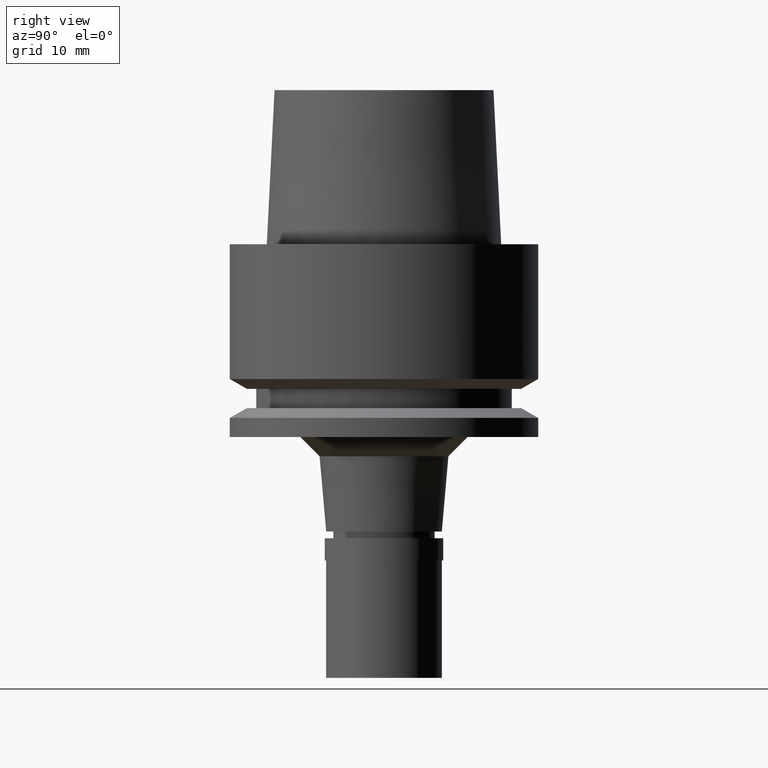
[diagram: clean part render]
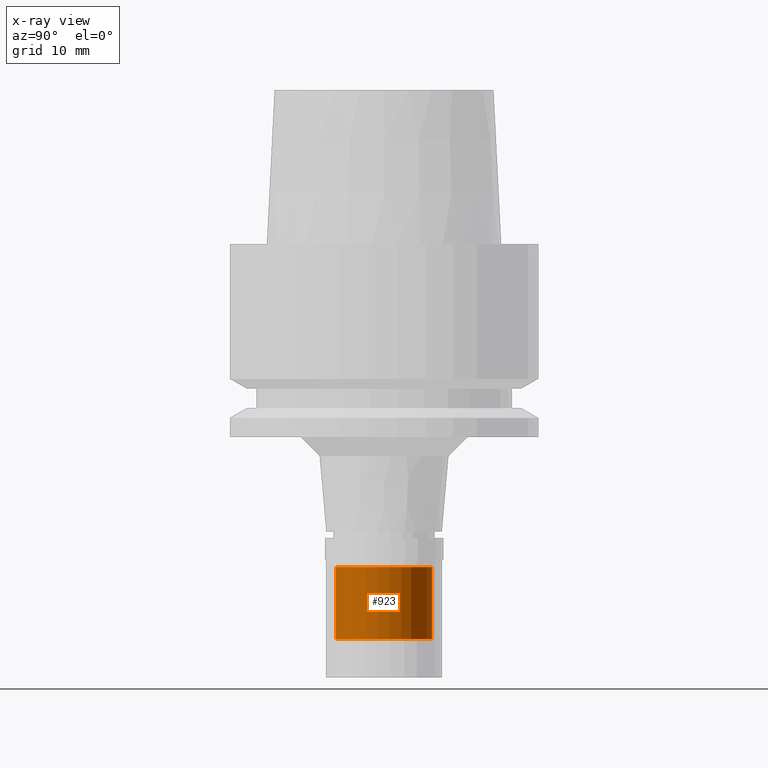
[diagram: x-ray — body ghosted, one internal face saturated and labeled with its STEP entity id]
A machine part, right view, then the same camera in x-ray: the body is ghosted and one INTERNAL B-rep face — a face not visible from any outside direction — is saturated and labeled: STEP entity #923.
In plain terms, the highlighted cylindrical surface (partial cylindrical patch) has radius 5 mm, axis along (0, 0, -1).
Its self-contained STEP definition (entity closure, byte-faithful):
#115 = DIRECTION ( 'NONE',  ( 0.0000000000000000000, 0.0000000000000000000, -1.000000000000000000 ) ) ;
#140 = CIRCLE ( 'NONE', #352, 5.000000000000000000 ) ;
#198 = LINE ( 'NONE', #1925, #665 ) ;
#208 = LINE ( 'NONE', #835, #2311 ) ;
#277 = EDGE_CURVE ( 'NONE', #2096, #2019, #198, .T. ) ;
#303 = ORIENTED_EDGE ( 'NONE', *, *, #2150, .T. ) ;
#352 = AXIS2_PLACEMENT_3D ( 'NONE', #748, #2160, #911 ) ;
#373 = DIRECTION ( 'NONE',  ( 0.0000000000000000000, -1.000000000000000000, 0.0000000000000000000 ) ) ;
#445 = EDGE_CURVE ( 'NONE', #946, #1775, #208, .T. ) ;
#566 = FACE_OUTER_BOUND ( 'NONE', #2326, .T. ) ;
#665 = VECTOR ( 'NONE', #115, 1000.000000000000000 ) ;
#736 = CARTESIAN_POINT ( 'NONE',  ( 0.0000000000000000000, 5.000000000000000000, -41.00000000000000000 ) ) ;
#748 = CARTESIAN_POINT ( 'NONE',  ( 0.0000000000000000000, 0.0000000000000000000, -33.50000000000000000 ) ) ;
#769 = CARTESIAN_POINT ( 'NONE',  ( 0.0000000000000000000, 0.0000000000000000000, 18.84999999999999787 ) ) ;
#813 = DIRECTION ( 'NONE',  ( 0.0000000000000000000, 0.0000000000000000000, 1.000000000000000000 ) ) ;
#824 = CIRCLE ( 'NONE', #2477, 5.000000000000000000 ) ;
#835 = CARTESIAN_POINT ( 'NONE',  ( 0.0000000000000000000, -5.000000000000000000, -33.50000000000000000 ) ) ;
#911 = DIRECTION ( 'NONE',  ( 0.0000000000000000000, 1.000000000000000000, 0.0000000000000000000 ) ) ;
#923 = ADVANCED_FACE ( 'NONE', ( #566 ), #980, .T. ) ;
#946 = VERTEX_POINT ( 'NONE', #2021 ) ;
#980 = CYLINDRICAL_SURFACE ( 'NONE', #1489, 5.000000000000000000 ) ;
#1392 = DIRECTION ( 'NONE',  ( 0.0000000000000000000, 0.0000000000000000000, -1.000000000000000000 ) ) ;
#1489 = AXIS2_PLACEMENT_3D ( 'NONE', #769, #1392, #2482 ) ;
#1493 = ORIENTED_EDGE ( 'NONE', *, *, #1736, .T. ) ;
#1534 = CARTESIAN_POINT ( 'NONE',  ( 0.0000000000000000000, 5.000000000000000000, -33.50000000000000000 ) ) ;
#1645 = DIRECTION ( 'NONE',  ( 0.0000000000000000000, 0.0000000000000000000, -1.000000000000000000 ) ) ;
#1736 = EDGE_CURVE ( 'NONE', #1775, #2019, #824, .T. ) ;
#1775 = VERTEX_POINT ( 'NONE', #2549 ) ;
#1861 = CARTESIAN_POINT ( 'NONE',  ( 0.0000000000000000000, 0.0000000000000000000, -41.00000000000000000 ) ) ;
#1925 = CARTESIAN_POINT ( 'NONE',  ( 0.0000000000000000000, 5.000000000000000000, -33.50000000000000000 ) ) ;
#2019 = VERTEX_POINT ( 'NONE', #736 ) ;
#2021 = CARTESIAN_POINT ( 'NONE',  ( 0.0000000000000000000, -5.000000000000000000, -33.50000000000000000 ) ) ;
#2096 = VERTEX_POINT ( 'NONE', #1534 ) ;
#2150 = EDGE_CURVE ( 'NONE', #2096, #946, #140, .T. ) ;
#2160 = DIRECTION ( 'NONE',  ( 0.0000000000000000000, 0.0000000000000000000, -1.000000000000000000 ) ) ;
#2291 = ORIENTED_EDGE ( 'NONE', *, *, #445, .T. ) ;
#2311 = VECTOR ( 'NONE', #1645, 1000.000000000000000 ) ;
#2326 = EDGE_LOOP ( 'NONE', ( #303, #2291, #1493, #2596 ) ) ;
#2477 = AXIS2_PLACEMENT_3D ( 'NONE', #1861, #813, #373 ) ;
#2482 = DIRECTION ( 'NONE',  ( 0.0000000000000000000, -1.000000000000000000, 0.0000000000000000000 ) ) ;
#2549 = CARTESIAN_POINT ( 'NONE',  ( 0.0000000000000000000, -5.000000000000000000, -41.00000000000000000 ) ) ;
#2596 = ORIENTED_EDGE ( 'NONE', *, *, #277, .F. ) ;